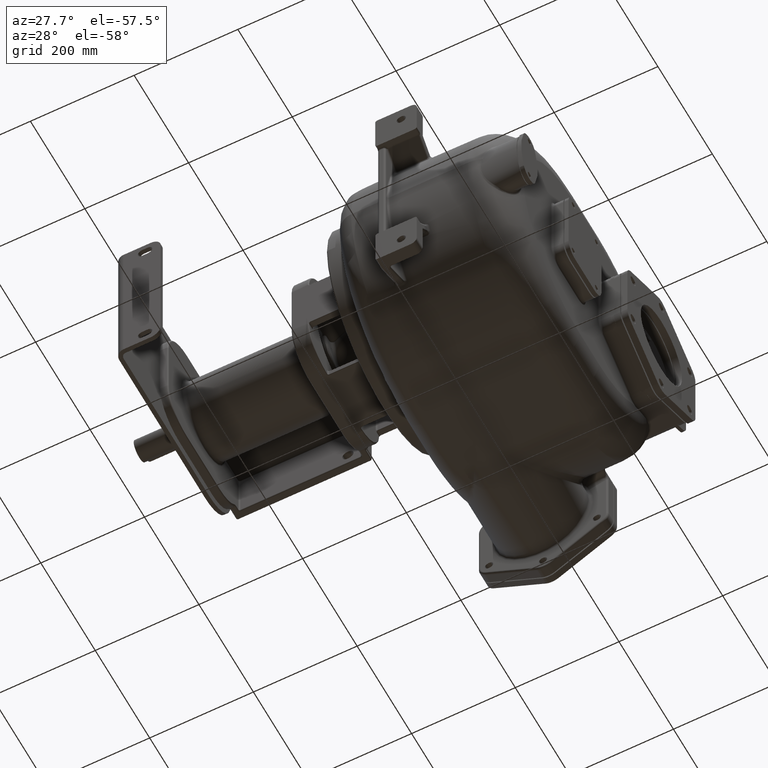
[diagram: clean part render]
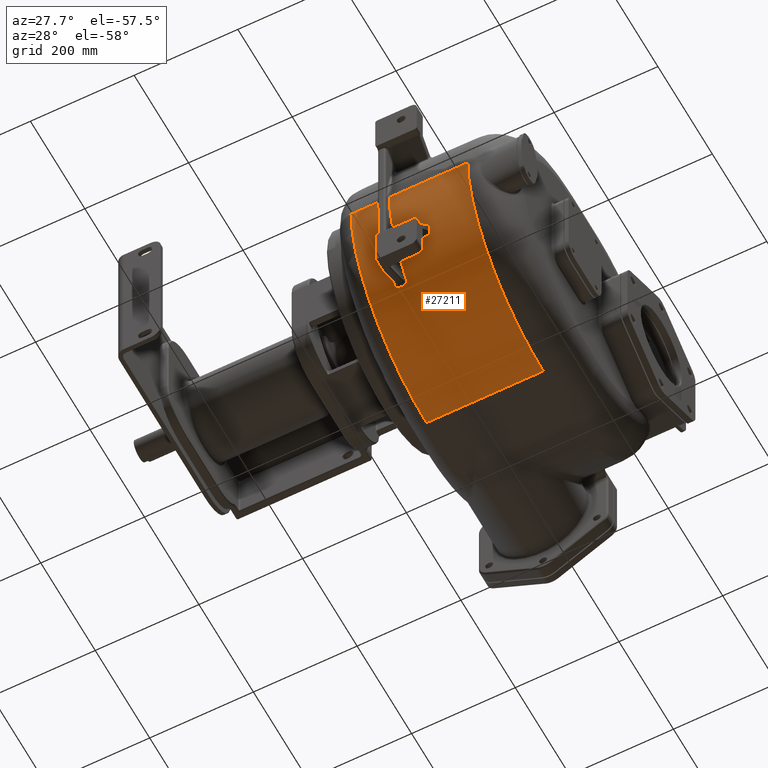
[diagram: same view with one face highlighted and labeled with its STEP entity id]
A machine part, auxiliary view. The second image highlights one B-rep face of the part: STEP entity #27211.
In plain terms, the highlighted cylindrical surface (partial cylindrical patch) has radius 277 mm, axis along (-1, 0, 0).
Its self-contained STEP definition (entity closure, byte-faithful):
#2218=DIRECTION('',(1.E0,0.E0,2.072764617896E-13));
#2219=VECTOR('',#2218,5.1E1);
#2220=CARTESIAN_POINT('',(-1.05E2,1.6E1,-1.300000000001E1));
#2221=LINE('',#2220,#2219);
#2232=DIRECTION('',(1.E0,0.E0,2.595245578411E-13));
#2233=VECTOR('',#2232,1.51E2);
#2234=CARTESIAN_POINT('',(-3.1E1,1.6E1,-1.3E1));
#2235=LINE('',#2234,#2233);
#2460=CARTESIAN_POINT('',(-5.4E1,2.93E2,-1.3E1));
#2461=DIRECTION('',(1.E0,0.E0,0.E0));
#2462=DIRECTION('',(0.E0,-1.E0,0.E0));
#2463=AXIS2_PLACEMENT_3D('',#2460,#2461,#2462);
#2465=CARTESIAN_POINT('',(-5.399999999967E1,7.827247135819E1,
-1.879887852870E2));
#2466=CARTESIAN_POINT('',(-5.399999832471E1,7.833359543983E1,
-1.880637846023E2));
#2467=CARTESIAN_POINT('',(-5.399663409270E1,7.845583782860E1,
-1.882136915477E2));
#2468=CARTESIAN_POINT('',(-5.398110653916E1,7.863946629804E1,
-1.884382731464E2));
#2469=CARTESIAN_POINT('',(-5.395531746211E1,7.882294898018E1,
-1.886622304126E2));
#2470=CARTESIAN_POINT('',(-5.391924030279E1,7.900608796493E1,
-1.888852839933E2));
#2471=CARTESIAN_POINT('',(-5.387292157600E1,7.918862557424E1,
-1.891071366135E2));
#2472=CARTESIAN_POINT('',(-5.381639465943E1,7.937031812852E1,
-1.893274964904E2));
#2473=CARTESIAN_POINT('',(-5.374970498757E1,7.955091579382E1,
-1.895460705631E2));
#2474=CARTESIAN_POINT('',(-5.367289474321E1,7.973017175126E1,
-1.897625708088E2));
#2475=CARTESIAN_POINT('',(-5.358609767409E1,7.990782681772E1,
-1.899766968927E2));
#2476=CARTESIAN_POINT('',(-5.348946840391E1,8.008361279616E1,
-1.901881399529E2));
#2477=CARTESIAN_POINT('',(-5.338316758304E1,8.025726455745E1,
-1.903965972003E2));
#2478=CARTESIAN_POINT('',(-5.326736510712E1,8.042851807533E1,
-1.906017694033E2));
#2479=CARTESIAN_POINT('',(-5.314224186984E1,8.059710827972E1,
-1.908033582263E2));
#2480=CARTESIAN_POINT('',(-5.300798440715E1,8.076277557337E1,
-1.910010738957E2));
#2481=CARTESIAN_POINT('',(-5.286479578662E1,8.092525723809E1,
-1.911946248015E2));
#2482=CARTESIAN_POINT('',(-5.271284909104E1,8.108432482986E1,
-1.913837618912E2));
#2483=CARTESIAN_POINT('',(-5.255226754829E1,8.123984247117E1,
-1.915683472170E2));
#2484=CARTESIAN_POINT('',(-5.238325575588E1,8.139167035672E1,
-1.917482386560E2));
#2485=CARTESIAN_POINT('',(-5.220595593954E1,8.153968805466E1,
-1.919233173947E2));
#2486=CARTESIAN_POINT('',(-5.202066687573E1,8.168363705151E1,
-1.920933018899E2));
#2487=CARTESIAN_POINT('',(-5.182779962477E1,8.182319676123E1,
-1.922578387941E2));
#2488=CARTESIAN_POINT('',(-5.162776291827E1,8.195808065048E1,
-1.924166163114E2));
#2489=CARTESIAN_POINT('',(-5.142100186917E1,8.208800989510E1,
-1.925693328688E2));
#2490=CARTESIAN_POINT('',(-5.120761335993E1,8.221293558363E1,
-1.927159573725E2));
#2491=CARTESIAN_POINT('',(-5.098765303371E1,8.233278520374E1,
-1.928564302041E2));
#2492=CARTESIAN_POINT('',(-5.076120635268E1,8.244753285015E1,
-1.929907456175E2));
#2493=CARTESIAN_POINT('',(-5.052850126072E1,8.255707219728E1,
-1.931188028296E2));
#2494=CARTESIAN_POINT('',(-5.029012068269E1,8.266112967097E1,
-1.932403054098E2));
#2495=CARTESIAN_POINT('',(-5.004659803286E1,8.275948723639E1,
-1.933550219644E2));
#2496=CARTESIAN_POINT('',(-4.979855105194E1,8.285192104216E1,
-1.934627141183E2));
#2497=CARTESIAN_POINT('',(-4.954629282116E1,8.293834133379E1,
-1.935632991778E2));
#2498=CARTESIAN_POINT('',(-4.928996240322E1,8.301870394664E1,
-1.936567463078E2));
#2499=CARTESIAN_POINT('',(-4.902971464058E1,8.309293195536E1,
-1.937429853156E2));
#2500=CARTESIAN_POINT('',(-4.876569271095E1,8.316095156308E1,
-1.938219484528E2));
#2501=CARTESIAN_POINT('',(-4.849813008466E1,8.322275854155E1,
-1.938936473536E2));
#2502=CARTESIAN_POINT('',(-4.822725092048E1,8.327831919514E1,
-1.939580579669E2));
#2503=CARTESIAN_POINT('',(-4.795322232445E1,8.332759372460E1,
-1.940151476983E2));
#2504=CARTESIAN_POINT('',(-4.767641006499E1,8.337048732881E1,
-1.940648189311E2));
#2505=CARTESIAN_POINT('',(-4.739760325916E1,8.340685490102E1,
-1.941069140417E2));
#2506=CARTESIAN_POINT('',(-4.711753100128E1,8.343659801245E1,
-1.941413296624E2));
#2507=CARTESIAN_POINT('',(-4.683694011815E1,8.345964541649E1,
-1.941679862734E2));
#2508=CARTESIAN_POINT('',(-4.655659785035E1,8.347596611028E1,
-1.941868717870E2));
#2509=CARTESIAN_POINT('',(-4.627718466604E1,8.348555973135E1,
-1.941979236842E2));
#2510=CARTESIAN_POINT('',(-4.609221537469E1,8.348773760745E1,
-1.942005445023E2));
#2511=CARTESIAN_POINT('',(-4.600000001921E1,8.348771340094E1,
-1.942005388864E2));
#2513=DIRECTION('',(9.999999999838E-1,4.305490530862E-6,3.723239433809E-6));
#2514=VECTOR('',#2513,7.000000012941E0);
#2515=CARTESIAN_POINT('',(-4.600000001921E1,8.348771340094E1,
-1.942005388864E2));
#2516=LINE('',#2515,#2514);
#2517=CARTESIAN_POINT('',(-3.900000000638E1,8.348774353937E1,
-1.942005128237E2));
#2518=CARTESIAN_POINT('',(-3.890517203087E1,8.348772004442E1,
-1.942005080325E2));
#2519=CARTESIAN_POINT('',(-3.871585504E1,8.348543690510E1,-1.941977891747E2));
#2520=CARTESIAN_POINT('',(-3.843280124771E1,8.347534744307E1,
-1.941861543764E2));
#2521=CARTESIAN_POINT('',(-3.815095433286E1,8.345866139158E1,
-1.941668486990E2));
#2522=CARTESIAN_POINT('',(-3.787049430829E1,8.343542649596E1,
-1.941399741869E2));
#2523=CARTESIAN_POINT('',(-3.759163043302E1,8.340567304130E1,
-1.941055463094E2));
#2524=CARTESIAN_POINT('',(-3.731456754790E1,8.336941353763E1,
-1.940635756971E2));
#2525=CARTESIAN_POINT('',(-3.703952470770E1,8.332664222337E1,
-1.940140455449E2));
#2526=CARTESIAN_POINT('',(-3.676671327863E1,8.327733803798E1,
-1.939569208716E2));
#2527=CARTESIAN_POINT('',(-3.649638832608E1,8.322158789890E1,
-1.938922898480E2));
#2528=CARTESIAN_POINT('',(-3.622885886483E1,8.315947580313E1,
-1.938202359570E2));
#2529=CARTESIAN_POINT('',(-3.596443180522E1,8.309108070141E1,
-1.937408354473E2));
#2530=CARTESIAN_POINT('',(-3.570342305655E1,8.301647495993E1,
-1.936541555967E2));
#2531=CARTESIAN_POINT('',(-3.544634155163E1,8.293578780362E1,
-1.935603285424E2));
#2532=CARTESIAN_POINT('',(-3.519368590050E1,8.284915912934E1,
-1.934594978768E2));
#2533=CARTESIAN_POINT('',(-3.494597804171E1,8.275675500803E1,
-1.933518368726E2));
#2534=CARTESIAN_POINT('',(-3.470360566845E1,8.265869173680E1,
-1.932374601691E2));
#2535=CARTESIAN_POINT('',(-3.446659086653E1,8.255498170537E1,
-1.931163602038E2));
#2536=CARTESIAN_POINT('',(-3.423498585995E1,8.244569248892E1,
-1.929885927029E2));
#2537=CARTESIAN_POINT('',(-3.400880864685E1,8.233082295366E1,
-1.928541319424E2));
#2538=CARTESIAN_POINT('',(-3.378844817560E1,8.221053883928E1,
-1.927131464873E2));
#2539=CARTESIAN_POINT('',(-3.357446528812E1,8.208512317432E1,
-1.925659424968E2));
#2540=CARTESIAN_POINT('',(-3.336735384961E1,8.195485628132E1,
-1.924128236066E2));
#2541=CARTESIAN_POINT('',(-3.316759682420E1,8.182004790254E1,
-1.922541290389E2));
#2542=CARTESIAN_POINT('',(-3.297534166286E1,8.168079734334E1,
-1.920899509729E2));
#2543=CARTESIAN_POINT('',(-3.279077218311E1,8.153719150588E1,
-1.919203666255E2));
#2544=CARTESIAN_POINT('',(-3.261398268151E1,8.138932822300E1,
-1.917454659236E2));
#2545=CARTESIAN_POINT('',(-3.244514419890E1,8.123735674692E1,
-1.915653995767E2));
#2546=CARTESIAN_POINT('',(-3.228458191079E1,8.108156551312E1,
-1.913804840500E2));
#2547=CARTESIAN_POINT('',(-3.213257691447E1,8.092222865372E1,
-1.911910204808E2));
#2548=CARTESIAN_POINT('',(-3.198941135860E1,8.075964528353E1,
-1.909973414762E2));
#2549=CARTESIAN_POINT('',(-3.185529589106E1,8.059405514074E1,
-1.907997107898E2));
#2550=CARTESIAN_POINT('',(-3.173041245819E1,8.042566804372E1,
-1.905983579547E2));
#2551=CARTESIAN_POINT('',(-3.161495842959E1,8.025469987233E1,
-1.903935212116E2));
#2552=CARTESIAN_POINT('',(-3.150909568038E1,8.008137117961E1,
-1.901854460527E2));
#2553=CARTESIAN_POINT('',(-3.141288013507E1,7.990585871377E1,
-1.899743269525E2));
#2554=CARTESIAN_POINT('',(-3.132639608294E1,7.972834024979E1,
-1.897603609994E2));
#2555=CARTESIAN_POINT('',(-3.124972739878E1,7.954897035877E1,
-1.895437186683E2));
#2556=CARTESIAN_POINT('',(-3.118301076805E1,7.936799547987E1,
-1.893246828483E2));
#2557=CARTESIAN_POINT('',(-3.112643018448E1,7.918585443122E1,
-1.891037724065E2));
#2558=CARTESIAN_POINT('',(-3.108011309409E1,7.900295970719E1,
-1.888814784058E2));
#2559=CARTESIAN_POINT('',(-3.104414757011E1,7.881973008363E1,
-1.886583044464E2));
#2560=CARTESIAN_POINT('',(-3.101858067515E1,7.863659735900E1,
-1.884347714178E2));
#2561=CARTESIAN_POINT('',(-3.100336559936E1,7.845393263785E1,
-1.882113414480E2));
#2562=CARTESIAN_POINT('',(-3.099999572356E1,7.833285720902E1,
-1.880629133446E2));
#2563=CARTESIAN_POINT('',(-3.099999999997E1,7.827245801655E1,
-1.879887961621E2));
#2565=CARTESIAN_POINT('',(-3.1E1,2.93E2,-1.3E1));
#2566=DIRECTION('',(-1.E0,0.E0,0.E0));
#2567=DIRECTION('',(0.E0,-7.751897021109E-1,-6.317285221843E-1));
#2568=AXIS2_PLACEMENT_3D('',#2565,#2566,#2567);
#2570=DIRECTION('',(9.999999999998E-1,-5.727442036156E-7,-2.845485603180E-7));
#2571=VECTOR('',#2570,5.699999998567E1);
#2572=CARTESIAN_POINT('',(-3.1E1,4.492793715787E1,-1.362446819837E2));
#2573=LINE('',#2572,#2571);
#2574=CARTESIAN_POINT('',(2.599999998566E1,4.492790451145E1,-1.362446982029E2));
#2575=CARTESIAN_POINT('',(2.609269379162E1,4.492788955995E1,-1.362447090809E2));
#2576=CARTESIAN_POINT('',(2.627805449840E1,4.492647060168E1,-1.362416730668E2));
#2577=CARTESIAN_POINT('',(2.655618053972E1,4.491971286605E1,-1.362281422106E2));
#2578=CARTESIAN_POINT('',(2.683389415209E1,4.490851464015E1,-1.362055769088E2));
#2579=CARTESIAN_POINT('',(2.711086928788E1,4.489282946151E1,-1.361739937385E2));
#2580=CARTESIAN_POINT('',(2.738672957808E1,4.487267987432E1,-1.361333982881E2));
#2581=CARTESIAN_POINT('',(2.766110935471E1,4.484807639453E1,-1.360838090063E2));
#2582=CARTESIAN_POINT('',(2.793363964658E1,4.481903645101E1,-1.360252452612E2));
#2583=CARTESIAN_POINT('',(2.820395015030E1,4.478558645300E1,-1.359577449854E2));
#2584=CARTESIAN_POINT('',(2.847174249557E1,4.474777881022E1,-1.358813955599E2));
#2585=CARTESIAN_POINT('',(2.873673445388E1,4.470565919677E1,-1.357962688456E2));
#2586=CARTESIAN_POINT('',(2.899863167643E1,4.465927594792E1,-1.357024399425E2));
#2587=CARTESIAN_POINT('',(2.925713678326E1,4.460867743606E1,-1.355999820274E2));
#2588=CARTESIAN_POINT('',(2.951189913764E1,4.455392383574E1,-1.354889902615E2));
#2589=CARTESIAN_POINT('',(2.976256754159E1,4.449507834029E1,-1.353695641645E2));
#2590=CARTESIAN_POINT('',(3.000878167391E1,4.443221106389E1,-1.352418156697E2));
#2591=CARTESIAN_POINT('',(3.025021369933E1,4.436537816303E1,-1.351058268040E2));
#2592=CARTESIAN_POINT('',(3.048668950430E1,4.429462403010E1,-1.349616539928E2));
#2593=CARTESIAN_POINT('',(3.071802017022E1,4.422000969252E1,-1.348093859872E2));
#2594=CARTESIAN_POINT('',(3.094402978166E1,4.414157741882E1,-1.346490717328E2));
#2595=CARTESIAN_POINT('',(3.116435715342E1,4.405942981167E1,-1.344808821409E2));
#2596=CARTESIAN_POINT('',(3.137855058175E1,4.397371469476E1,-1.343050803384E2));
#2597=CARTESIAN_POINT('',(3.158619248696E1,4.388458193987E1,-1.341219338009E2));
#2598=CARTESIAN_POINT('',(3.178687222552E1,4.379219497349E1,-1.339317384317E2));
#2599=CARTESIAN_POINT('',(3.198040459193E1,4.369661535594E1,-1.337345806453E2));
#2600=CARTESIAN_POINT('',(3.216658768723E1,4.359790205331E1,-1.335305406648E2));
#2601=CARTESIAN_POINT('',(3.234529862693E1,4.349611663723E1,-1.333197034388E2));
#2602=CARTESIAN_POINT('',(3.251632422922E1,4.339135132428E1,-1.331022168749E2));
#2603=CARTESIAN_POINT('',(3.267930426649E1,4.328379441093E1,-1.328784291158E2));
#2604=CARTESIAN_POINT('',(3.283391917765E1,4.317362672708E1,-1.326486748248E2));
#2605=CARTESIAN_POINT('',(3.297984671366E1,4.306104909320E1,-1.324133326554E2));
#2606=CARTESIAN_POINT('',(3.311684283230E1,4.294621695335E1,-1.321726888972E2));
#2607=CARTESIAN_POINT('',(3.324469249868E1,4.282926368802E1,-1.319269853998E2));
#2608=CARTESIAN_POINT('',(3.336315443856E1,4.271033012756E1,-1.316764814476E2));
#2609=CARTESIAN_POINT('',(3.347205321796E1,4.258955904072E1,-1.314214425043E2));
#2610=CARTESIAN_POINT('',(3.357125610518E1,4.246708392453E1,-1.311621166076E2));
#2611=CARTESIAN_POINT('',(3.366061321519E1,4.234304316379E1,-1.308987643572E2));
#2612=CARTESIAN_POINT('',(3.373997897681E1,4.221756467225E1,-1.306316264808E2));
#2613=CARTESIAN_POINT('',(3.380916850061E1,4.209083151602E1,-1.303610634942E2));
#2614=CARTESIAN_POINT('',(3.386796184880E1,4.196314001704E1,-1.300876833966E2));
#2615=CARTESIAN_POINT('',(3.391619227845E1,4.183477390453E1,-1.298120710134E2));
#2616=CARTESIAN_POINT('',(3.395373602318E1,4.170601747907E1,-1.295348300713E2));
#2617=CARTESIAN_POINT('',(3.398049702001E1,4.157717938949E1,-1.292565822655E2));
#2618=CARTESIAN_POINT('',(3.399655610638E1,4.144846395358E1,-1.289778863691E2));
#2619=CARTESIAN_POINT('',(3.399999794466E1,4.136310767318E1,-1.287922906864E2));
#2620=CARTESIAN_POINT('',(3.399999999889E1,4.132046789148E1,-1.286995218984E2));
#2622=CARTESIAN_POINT('',(3.4E1,2.93E2,-1.3E1));
#2623=DIRECTION('',(-1.E0,0.E0,0.E0));
#2624=DIRECTION('',(0.E0,-9.085905684610E-1,-4.176878965254E-1));
#2625=AXIS2_PLACEMENT_3D('',#2622,#2623,#2624);
#2627=CARTESIAN_POINT('',(3.399999999916E1,3.832158612529E1,-1.219398174866E2));
#2628=CARTESIAN_POINT('',(3.400000942320E1,3.828050302759E1,-1.218437346113E2));
#2629=CARTESIAN_POINT('',(3.399654010794E1,3.819831499908E1,-1.216514987874E2));
#2630=CARTESIAN_POINT('',(3.398011706974E1,3.807531215176E1,-1.213625057162E2));
#2631=CARTESIAN_POINT('',(3.395278064005E1,3.795271665839E1,-1.210736647799E2));
#2632=CARTESIAN_POINT('',(3.391445359222E1,3.783077146946E1,-1.207854214141E2));
#2633=CARTESIAN_POINT('',(3.386520103982E1,3.770968628115E1,-1.204983161490E2));
#2634=CARTESIAN_POINT('',(3.380509079515E1,3.758967556441E1,-1.202128624562E2));
#2635=CARTESIAN_POINT('',(3.373423232371E1,3.747094701606E1,-1.199295760918E2));
#2636=CARTESIAN_POINT('',(3.365276489954E1,3.735370199270E1,-1.196489606147E2));
#2637=CARTESIAN_POINT('',(3.356086862077E1,3.723813877992E1,-1.193715190314E2));
#2638=CARTESIAN_POINT('',(3.345875882188E1,3.712445191112E1,-1.190977508786E2));
#2639=CARTESIAN_POINT('',(3.334667096664E1,3.701282786200E1,-1.188281418098E2));
#2640=CARTESIAN_POINT('',(3.322486664711E1,3.690344584569E1,-1.185631651105E2));
#2641=CARTESIAN_POINT('',(3.309357430836E1,3.679643172915E1,-1.183031690773E2));
#2642=CARTESIAN_POINT('',(3.295302783692E1,3.669190432955E1,-1.180484878469E2));
#2643=CARTESIAN_POINT('',(3.280346786459E1,3.658997477922E1,-1.177994395505E2));
#2644=CARTESIAN_POINT('',(3.264514782795E1,3.649074992437E1,-1.175563341867E2));
#2645=CARTESIAN_POINT('',(3.247834531002E1,3.639433759720E1,-1.173194862790E2));
#2646=CARTESIAN_POINT('',(3.230340530380E1,3.630084685189E1,-1.170892153406E2));
#2647=CARTESIAN_POINT('',(3.212066528698E1,3.621037667961E1,-1.168658177590E2));
#2648=CARTESIAN_POINT('',(3.193051062546E1,3.612304236754E1,-1.166496315962E2));
#2649=CARTESIAN_POINT('',(3.173336113155E1,3.603896050589E1,-1.164409996941E2));
#2650=CARTESIAN_POINT('',(3.152963653352E1,3.595823280451E1,-1.162402290425E2));
#2651=CARTESIAN_POINT('',(3.131977837264E1,3.588095259323E1,-1.160476065252E2));
#2652=CARTESIAN_POINT('',(3.110389751166E1,3.580708675626E1,-1.158631030163E2));
#2653=CARTESIAN_POINT('',(3.088205771436E1,3.573661238050E1,-1.156867122172E2));
#2654=CARTESIAN_POINT('',(3.065430144653E1,3.566949068884E1,-1.155183856572E2));
#2655=CARTESIAN_POINT('',(3.042094154518E1,3.560575331416E1,-1.153582490542E2));
#2656=CARTESIAN_POINT('',(3.018275674832E1,3.554555885802E1,-1.152067467366E2));
#2657=CARTESIAN_POINT('',(2.994044471380E1,3.548901619308E1,-1.150641981864E2));
#2658=CARTESIAN_POINT('',(2.969484080860E1,3.543624111313E1,-1.149309397520E2));
#2659=CARTESIAN_POINT('',(2.944619472027E1,3.538720687425E1,-1.148069462652E2));
#2660=CARTESIAN_POINT('',(2.919441925631E1,3.534184423875E1,-1.146920815688E2));
#2661=CARTESIAN_POINT('',(2.893945362467E1,3.530011646647E1,-1.145862882961E2));
#2662=CARTESIAN_POINT('',(2.868116863394E1,3.526201210488E1,-1.144895702210E2));
#2663=CARTESIAN_POINT('',(2.841975739170E1,3.522749537018E1,-1.144018664348E2));
#2664=CARTESIAN_POINT('',(2.815542104305E1,3.519654016490E1,-1.143231376099E2));
#2665=CARTESIAN_POINT('',(2.788826178413E1,3.516913563149E1,-1.142533802160E2));
#2666=CARTESIAN_POINT('',(2.761864798154E1,3.514531749685E1,-1.141927069414E2));
#2667=CARTESIAN_POINT('',(2.734752020158E1,3.512516679784E1,-1.141413424039E2));
#2668=CARTESIAN_POINT('',(2.707572920882E1,3.510872991888E1,-1.140994246979E2));
#2669=CARTESIAN_POINT('',(2.680414611238E1,3.509604930913E1,-1.140670631823E2));
#2670=CARTESIAN_POINT('',(2.653366108155E1,3.508709648914E1,-1.140442426206E2));
#2671=CARTESIAN_POINT('',(2.626506094506E1,3.508200446363E1,-1.140311351021E2));
#2672=CARTESIAN_POINT('',(2.608805493990E1,3.508065605549E1,-1.140279633953E2));
#2673=CARTESIAN_POINT('',(2.600000006047E1,3.508064866860E1,-1.140280210734E2));
#2675=DIRECTION('',(-9.999999999986E-1,1.557801860651E-6,6.103473789439E-7));
#2676=VECTOR('',#2675,5.700000006055E1);
#2677=CARTESIAN_POINT('',(2.600000006047E1,3.508064866860E1,-1.140280210734E2));
#2678=LINE('',#2677,#2676);
#2679=CARTESIAN_POINT('',(-3.1E1,2.93E2,-1.3E1));
#2680=DIRECTION('',(-1.E0,0.E0,0.E0));
#2681=DIRECTION('',(0.E0,-9.311164712516E-1,-3.647219721431E-1));
#2682=AXIS2_PLACEMENT_3D('',#2679,#2680,#2681);
#2684=CARTESIAN_POINT('',(1.2E2,2.93E2,-1.3E1));
#2685=DIRECTION('',(1.E0,0.E0,0.E0));
#2686=DIRECTION('',(0.E0,-1.E0,0.E0));
#2687=AXIS2_PLACEMENT_3D('',#2684,#2685,#2686);
#2689=DIRECTION('',(1.E0,-5.078012084899E-14,0.E0));
#2690=VECTOR('',#2689,2.25E2);
#2691=CARTESIAN_POINT('',(-1.05E2,2.93E2,-2.9E2));
#2692=LINE('',#2691,#2690);
#2693=CARTESIAN_POINT('',(-1.05E2,2.93E2,-1.3E1));
#2694=DIRECTION('',(-1.E0,0.E0,0.E0));
#2695=DIRECTION('',(0.E0,0.E0,-1.E0));
#2696=AXIS2_PLACEMENT_3D('',#2693,#2694,#2695);
#22497=CARTESIAN_POINT('',(-1.05E2,2.93E2,-2.9E2));
#22498=CARTESIAN_POINT('',(1.2E2,2.93E2,-2.9E2));
#22499=VERTEX_POINT('',#22497);
#22500=VERTEX_POINT('',#22498);
#22603=CARTESIAN_POINT('',(-1.05E2,1.6E1,-1.3E1));
#22604=VERTEX_POINT('',#22603);
#22623=CARTESIAN_POINT('',(1.2E2,1.6E1,-1.3E1));
#22624=VERTEX_POINT('',#22623);
#22987=CARTESIAN_POINT('',(-5.4E1,1.6E1,-1.3E1));
#22988=VERTEX_POINT('',#22987);
#22989=CARTESIAN_POINT('',(-3.1E1,1.6E1,-1.3E1));
#22990=VERTEX_POINT('',#22989);
#23053=CARTESIAN_POINT('',(-5.4E1,7.827245251528E1,-1.879888006451E2));
#23054=VERTEX_POINT('',#23053);
#23055=VERTEX_POINT('',#2511);
#23056=CARTESIAN_POINT('',(-3.900000000638E1,8.348774353937E1,
-1.942005128237E2));
#23057=VERTEX_POINT('',#23056);
#23058=VERTEX_POINT('',#2563);
#23059=CARTESIAN_POINT('',(-3.1E1,4.492793715787E1,-1.362446819837E2));
#23060=VERTEX_POINT('',#23059);
#23063=CARTESIAN_POINT('',(2.599999998566E1,4.492790451145E1,
-1.362446982029E2));
#23064=VERTEX_POINT('',#23063);
#23065=VERTEX_POINT('',#2620);
#23067=CARTESIAN_POINT('',(3.4E1,3.832155015354E1,-1.219398328611E2));
#23068=VERTEX_POINT('',#23067);
#23071=VERTEX_POINT('',#2673);
#23073=CARTESIAN_POINT('',(-3.1E1,3.508073746331E1,-1.140279862836E2));
#23074=VERTEX_POINT('',#23073);
#27174=CARTESIAN_POINT('',(-1.41E2,2.93E2,-1.3E1));
#27175=DIRECTION('',(-1.E0,0.E0,0.E0));
#27176=DIRECTION('',(0.E0,0.E0,1.E0));
#27177=AXIS2_PLACEMENT_3D('',#27174,#27175,#27176);
#27178=CYLINDRICAL_SURFACE('',#27177,2.77E2);
#27179=ORIENTED_EDGE('',*,*,#27140,.T.);
#27181=ORIENTED_EDGE('',*,*,#27180,.T.);
#27183=ORIENTED_EDGE('',*,*,#27182,.T.);
#27185=ORIENTED_EDGE('',*,*,#27184,.T.);
#27187=ORIENTED_EDGE('',*,*,#27186,.T.);
#27189=ORIENTED_EDGE('',*,*,#27188,.T.);
#27191=ORIENTED_EDGE('',*,*,#27190,.T.);
#27193=ORIENTED_EDGE('',*,*,#27192,.T.);
#27195=ORIENTED_EDGE('',*,*,#27194,.T.);
#27197=ORIENTED_EDGE('',*,*,#27196,.T.);
#27199=ORIENTED_EDGE('',*,*,#27198,.T.);
#27201=ORIENTED_EDGE('',*,*,#27200,.T.);
#27202=ORIENTED_EDGE('',*,*,#27147,.T.);
#27204=ORIENTED_EDGE('',*,*,#27203,.T.);
#27206=ORIENTED_EDGE('',*,*,#27205,.F.);
#27208=ORIENTED_EDGE('',*,*,#27207,.T.);
#27209=EDGE_LOOP('',(#27179,#27181,#27183,#27185,#27187,#27189,#27191,#27193,
#27195,#27197,#27199,#27201,#27202,#27204,#27206,#27208));
#27210=FACE_OUTER_BOUND('',#27209,.F.);
#27211=ADVANCED_FACE('',(#27210),#27178,.T.);
#2464=CIRCLE('',#2463,2.77E2);
#2512=B_SPLINE_CURVE_WITH_KNOTS('',3,(#2465,#2466,#2467,#2468,#2469,#2470,#2471,
#2472,#2473,#2474,#2475,#2476,#2477,#2478,#2479,#2480,#2481,#2482,#2483,#2484,
#2485,#2486,#2487,#2488,#2489,#2490,#2491,#2492,#2493,#2494,#2495,#2496,#2497,
#2498,#2499,#2500,#2501,#2502,#2503,#2504,#2505,#2506,#2507,#2508,#2509,#2510,
#2511),.UNSPECIFIED.,.F.,.F.,(4,1,1,1,1,1,1,1,1,1,1,1,1,1,1,1,1,1,1,1,1,1,1,1,1,
1,1,1,1,1,1,1,1,1,1,1,1,1,1,1,1,1,1,1,4),(0.E0,2.272727272727E-2,
4.545454545455E-2,6.818181818182E-2,9.090909090909E-2,1.136363636364E-1,
1.363636363636E-1,1.590909090909E-1,1.818181818182E-1,2.045454545455E-1,
2.272727272727E-1,2.5E-1,2.727272727273E-1,2.954545454545E-1,3.181818181818E-1,
3.409090909091E-1,3.636363636364E-1,3.863636363636E-1,4.090909090909E-1,
4.318181818182E-1,4.545454545455E-1,4.772727272727E-1,5.E-1,5.227272727273E-1,
5.454545454545E-1,5.681818181818E-1,5.909090909091E-1,6.136363636364E-1,
6.363636363636E-1,6.590909090909E-1,6.818181818182E-1,7.045454545455E-1,
7.272727272727E-1,7.5E-1,7.727272727273E-1,7.954545454545E-1,8.181818181818E-1,
8.409090909091E-1,8.636363636364E-1,8.863636363636E-1,9.090909090909E-1,
9.318181818182E-1,9.545454545455E-1,9.772727272727E-1,1.E0),.UNSPECIFIED.);
#2564=B_SPLINE_CURVE_WITH_KNOTS('',3,(#2517,#2518,#2519,#2520,#2521,#2522,#2523,
#2524,#2525,#2526,#2527,#2528,#2529,#2530,#2531,#2532,#2533,#2534,#2535,#2536,
#2537,#2538,#2539,#2540,#2541,#2542,#2543,#2544,#2545,#2546,#2547,#2548,#2549,
#2550,#2551,#2552,#2553,#2554,#2555,#2556,#2557,#2558,#2559,#2560,#2561,#2562,
#2563),.UNSPECIFIED.,.F.,.F.,(4,1,1,1,1,1,1,1,1,1,1,1,1,1,1,1,1,1,1,1,1,1,1,1,1,
1,1,1,1,1,1,1,1,1,1,1,1,1,1,1,1,1,1,1,4),(0.E0,2.272727272727E-2,
4.545454545455E-2,6.818181818182E-2,9.090909090909E-2,1.136363636364E-1,
1.363636363636E-1,1.590909090909E-1,1.818181818182E-1,2.045454545455E-1,
2.272727272727E-1,2.5E-1,2.727272727273E-1,2.954545454545E-1,3.181818181818E-1,
3.409090909091E-1,3.636363636364E-1,3.863636363636E-1,4.090909090909E-1,
4.318181818182E-1,4.545454545455E-1,4.772727272727E-1,5.E-1,5.227272727273E-1,
5.454545454545E-1,5.681818181818E-1,5.909090909091E-1,6.136363636364E-1,
6.363636363636E-1,6.590909090909E-1,6.818181818182E-1,7.045454545455E-1,
7.272727272727E-1,7.5E-1,7.727272727273E-1,7.954545454545E-1,8.181818181818E-1,
8.409090909091E-1,8.636363636364E-1,8.863636363636E-1,9.090909090909E-1,
9.318181818182E-1,9.545454545455E-1,9.772727272727E-1,1.E0),.UNSPECIFIED.);
#2569=CIRCLE('',#2568,2.77E2);
#2621=B_SPLINE_CURVE_WITH_KNOTS('',3,(#2574,#2575,#2576,#2577,#2578,#2579,#2580,
#2581,#2582,#2583,#2584,#2585,#2586,#2587,#2588,#2589,#2590,#2591,#2592,#2593,
#2594,#2595,#2596,#2597,#2598,#2599,#2600,#2601,#2602,#2603,#2604,#2605,#2606,
#2607,#2608,#2609,#2610,#2611,#2612,#2613,#2614,#2615,#2616,#2617,#2618,#2619,
#2620),.UNSPECIFIED.,.F.,.F.,(4,1,1,1,1,1,1,1,1,1,1,1,1,1,1,1,1,1,1,1,1,1,1,1,1,
1,1,1,1,1,1,1,1,1,1,1,1,1,1,1,1,1,1,1,4),(0.E0,2.272727272727E-2,
4.545454545455E-2,6.818181818182E-2,9.090909090909E-2,1.136363636364E-1,
1.363636363636E-1,1.590909090909E-1,1.818181818182E-1,2.045454545455E-1,
2.272727272727E-1,2.5E-1,2.727272727273E-1,2.954545454545E-1,3.181818181818E-1,
3.409090909091E-1,3.636363636364E-1,3.863636363636E-1,4.090909090909E-1,
4.318181818182E-1,4.545454545455E-1,4.772727272727E-1,5.E-1,5.227272727273E-1,
5.454545454545E-1,5.681818181818E-1,5.909090909091E-1,6.136363636364E-1,
6.363636363636E-1,6.590909090909E-1,6.818181818182E-1,7.045454545455E-1,
7.272727272727E-1,7.5E-1,7.727272727273E-1,7.954545454545E-1,8.181818181818E-1,
8.409090909091E-1,8.636363636364E-1,8.863636363636E-1,9.090909090909E-1,
9.318181818182E-1,9.545454545455E-1,9.772727272727E-1,1.E0),.UNSPECIFIED.);
#2626=CIRCLE('',#2625,2.77E2);
#2674=B_SPLINE_CURVE_WITH_KNOTS('',3,(#2627,#2628,#2629,#2630,#2631,#2632,#2633,
#2634,#2635,#2636,#2637,#2638,#2639,#2640,#2641,#2642,#2643,#2644,#2645,#2646,
#2647,#2648,#2649,#2650,#2651,#2652,#2653,#2654,#2655,#2656,#2657,#2658,#2659,
#2660,#2661,#2662,#2663,#2664,#2665,#2666,#2667,#2668,#2669,#2670,#2671,#2672,
#2673),.UNSPECIFIED.,.F.,.F.,(4,1,1,1,1,1,1,1,1,1,1,1,1,1,1,1,1,1,1,1,1,1,1,1,1,
1,1,1,1,1,1,1,1,1,1,1,1,1,1,1,1,1,1,1,4),(0.E0,2.272727272727E-2,
4.545454545455E-2,6.818181818182E-2,9.090909090909E-2,1.136363636364E-1,
1.363636363636E-1,1.590909090909E-1,1.818181818182E-1,2.045454545455E-1,
2.272727272727E-1,2.5E-1,2.727272727273E-1,2.954545454545E-1,3.181818181818E-1,
3.409090909091E-1,3.636363636364E-1,3.863636363636E-1,4.090909090909E-1,
4.318181818182E-1,4.545454545455E-1,4.772727272727E-1,5.E-1,5.227272727273E-1,
5.454545454545E-1,5.681818181818E-1,5.909090909091E-1,6.136363636364E-1,
6.363636363636E-1,6.590909090909E-1,6.818181818182E-1,7.045454545455E-1,
7.272727272727E-1,7.5E-1,7.727272727273E-1,7.954545454545E-1,8.181818181818E-1,
8.409090909091E-1,8.636363636364E-1,8.863636363636E-1,9.090909090909E-1,
9.318181818182E-1,9.545454545455E-1,9.772727272727E-1,1.E0),.UNSPECIFIED.);
#2683=CIRCLE('',#2682,2.77E2);
#2688=CIRCLE('',#2687,2.77E2);
#2697=CIRCLE('',#2696,2.77E2);
#27140=EDGE_CURVE('',#22604,#22988,#2221,.T.);
#27147=EDGE_CURVE('',#22990,#22624,#2235,.T.);
#27180=EDGE_CURVE('',#22988,#23054,#2464,.T.);
#27182=EDGE_CURVE('',#23054,#23055,#2512,.T.);
#27184=EDGE_CURVE('',#23055,#23057,#2516,.T.);
#27186=EDGE_CURVE('',#23057,#23058,#2564,.T.);
#27188=EDGE_CURVE('',#23058,#23060,#2569,.T.);
#27190=EDGE_CURVE('',#23060,#23064,#2573,.T.);
#27192=EDGE_CURVE('',#23064,#23065,#2621,.T.);
#27194=EDGE_CURVE('',#23065,#23068,#2626,.T.);
#27196=EDGE_CURVE('',#23068,#23071,#2674,.T.);
#27198=EDGE_CURVE('',#23071,#23074,#2678,.T.);
#27200=EDGE_CURVE('',#23074,#22990,#2683,.T.);
#27203=EDGE_CURVE('',#22624,#22500,#2688,.T.);
#27205=EDGE_CURVE('',#22499,#22500,#2692,.T.);
#27207=EDGE_CURVE('',#22499,#22604,#2697,.T.);